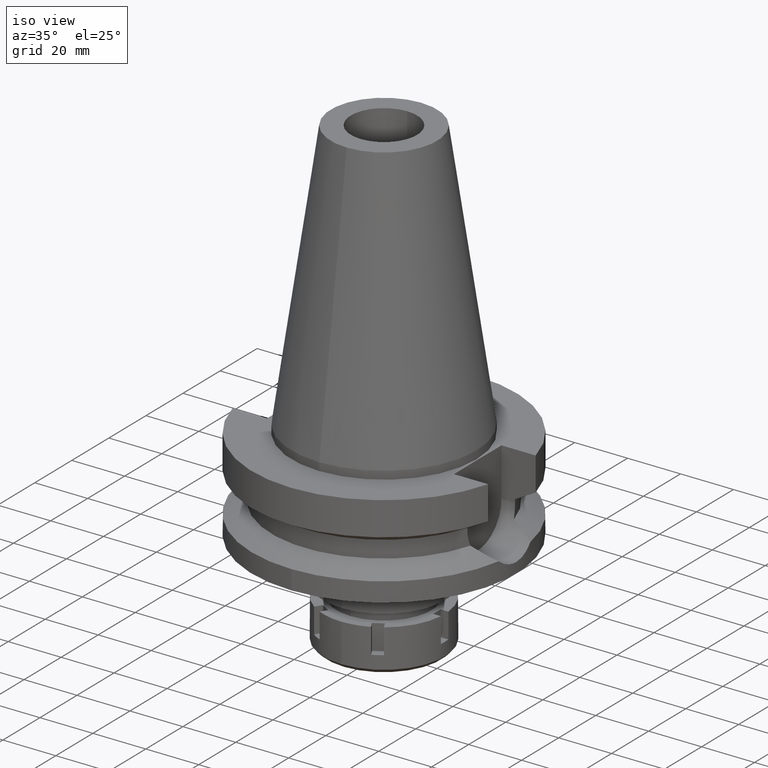
[diagram: clean part render]
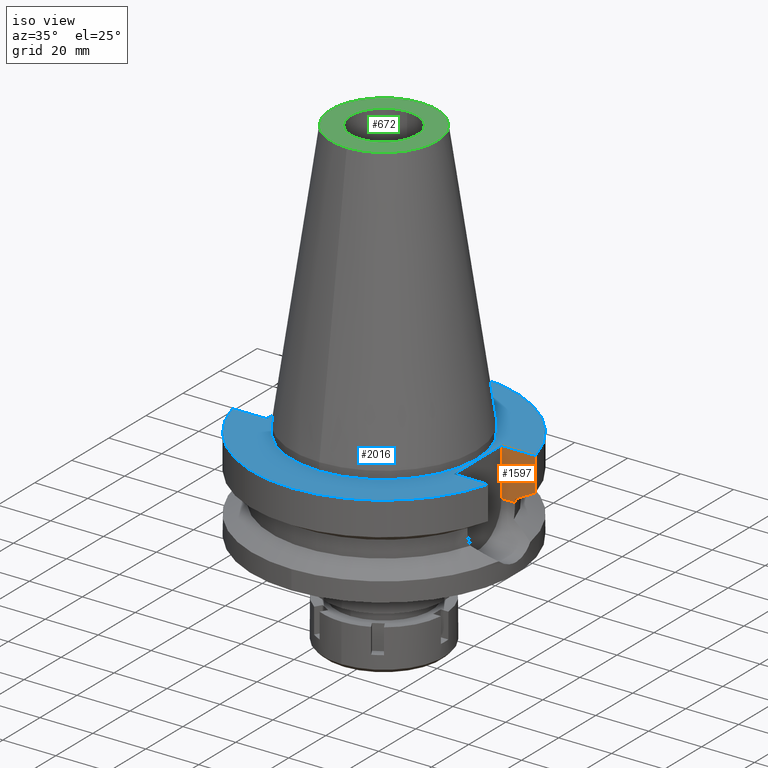
[diagram: same view with three faces highlighted in distinct colors, each labeled with its STEP entity id]
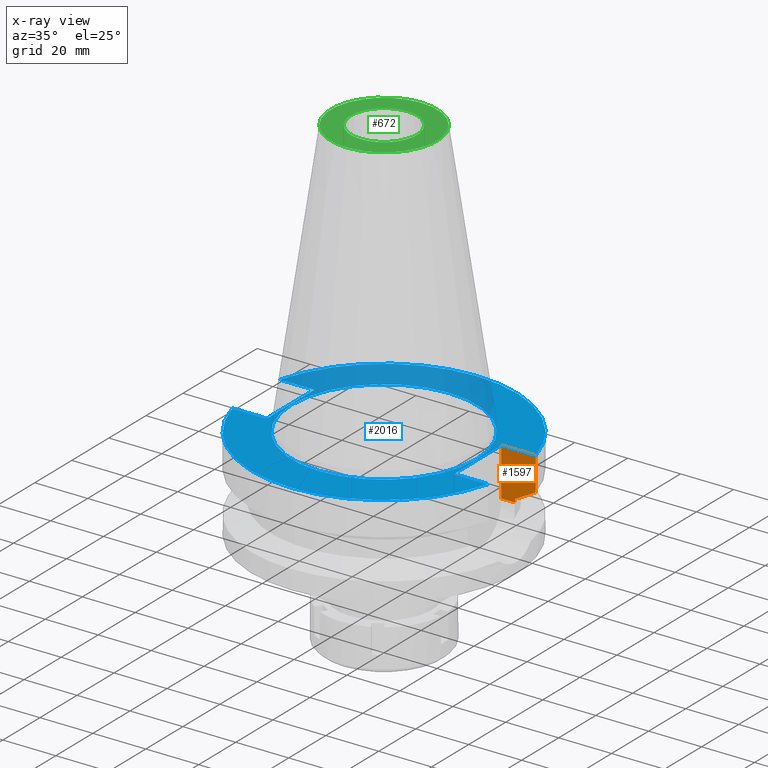
[diagram: x-ray of the same camera — body ghosted, the three highlighted faces saturated]
A machine part, iso view with three faces highlighted in distinct colors.
The next image is the same camera in x-ray (body ghosted, the three faces saturated) — at least one of them is partly hidden behind the body in this view.
Their STEP definitions:

[orange] entity #1597 — the highlighted planar face has unit normal (0, 1, 0).
#66 = CARTESIAN_POINT ( 'NONE',  ( 48.32056914196000008, 12.85000380531000097, -15.66265814809000112 ) ) ;
#156 = VERTEX_POINT ( 'NONE', #66 ) ;
#157 = VECTOR ( 'NONE', #794, 999.9999999999998863 ) ;
#159 = DIRECTION ( 'NONE',  ( 7.991657572512606666E-08, -3.005145553800853771E-07, 0.9999999999999515943 ) ) ;
#224 = VECTOR ( 'NONE', #3325, 1000.000000000000000 ) ;
#243 = LINE ( 'NONE', #1982, #157 ) ;
#398 = LINE ( 'NONE', #950, #3322 ) ;
#432 = EDGE_CURVE ( 'NONE', #1104, #2497, #398, .T. ) ;
#465 = CARTESIAN_POINT ( 'NONE',  ( 35.39999999999999858, 12.84999999999999964, -3.000000000000000000 ) ) ;
#471 = CARTESIAN_POINT ( 'NONE',  ( 40.51083188481999997, 12.84999999999999964, -21.14999999999999858 ) ) ;
#597 = CARTESIAN_POINT ( 'NONE',  ( 35.39999999999999858, 12.84999999999999964, -21.14999999999999858 ) ) ;
#604 = DIRECTION ( 'NONE',  ( 1.000000000000000000, 0.0000000000000000000, 0.0000000000000000000 ) ) ;
#771 = CARTESIAN_POINT ( 'NONE',  ( 48.32056914196000008, 12.85000380531000097, -15.66265814809000112 ) ) ;
#794 = DIRECTION ( 'NONE',  ( 9.779743485570689108E-07, -3.083158599628904422E-06, 0.9999999999947689622 ) ) ;
#888 = FACE_OUTER_BOUND ( 'NONE', #2721, .T. ) ;
#907 = ORIENTED_EDGE ( 'NONE', *, *, #432, .F. ) ;
#950 = CARTESIAN_POINT ( 'NONE',  ( 35.39999999999999858, 12.84999999999999964, -3.000000000000000000 ) ) ;
#1104 = VERTEX_POINT ( 'NONE', #465 ) ;
#1253 = EDGE_CURVE ( 'NONE', #1453, #2362, #3603, .T. ) ;
#1453 = VERTEX_POINT ( 'NONE', #597 ) ;
#1508 = VECTOR ( 'NONE', #3298, 1000.000000000000000 ) ;
#1555 = ORIENTED_EDGE ( 'NONE', *, *, #1253, .T. ) ;
#1584 = CARTESIAN_POINT ( 'NONE',  ( 40.51083301648999679, 12.84999643230999844, -19.99284663420000285 ) ) ;
#1597 = ADVANCED_FACE ( 'NONE', ( #888 ), #3135, .F. ) ;
#1817 = CARTESIAN_POINT ( 'NONE',  ( 45.51179745077989480, 12.85000760603089631, -17.22986794761408902 ) ) ;
#1859 = LINE ( 'NONE', #3026, #1508 ) ;
#1906 = CARTESIAN_POINT ( 'NONE',  ( 35.39999999999999858, 12.84999999999999964, -21.14999999999999858 ) ) ;
#1982 = CARTESIAN_POINT ( 'NONE',  ( 40.51083188481999997, 12.84999999999999964, -21.14999999999999858 ) ) ;
#2080 = ORIENTED_EDGE ( 'NONE', *, *, #2677, .T. ) ;
#2088 = AXIS2_PLACEMENT_3D ( 'NONE', #3174, #2822, #2542 ) ;
#2228 = B_SPLINE_CURVE_WITH_KNOTS ( 'NONE', 3,
 ( #3005, #1817, #2452, #1584 ),
 .UNSPECIFIED., .F., .F.,
 ( 4, 4 ),
 ( 0.0000000000000000000, 1.000000000000000000 ),
 .UNSPECIFIED. ) ;
#2362 = VERTEX_POINT ( 'NONE', #471 ) ;
#2452 = CARTESIAN_POINT ( 'NONE',  ( 42.90862327296481737, 12.84999285736233965, -18.67324874285292324 ) ) ;
#2497 = VERTEX_POINT ( 'NONE', #3362 ) ;
#2542 = DIRECTION ( 'NONE',  ( 1.000000000000000000, 0.0000000000000000000, 0.0000000000000000000 ) ) ;
#2677 = EDGE_CURVE ( 'NONE', #2362, #3455, #243, .T. ) ;
#2721 = EDGE_LOOP ( 'NONE', ( #3424, #3389, #907, #2731, #1555, #2080 ) ) ;
#2731 = ORIENTED_EDGE ( 'NONE', *, *, #2902, .T. ) ;
#2743 = CARTESIAN_POINT ( 'NONE',  ( 40.51083301648999679, 12.84999643230999844, -19.99284663420000285 ) ) ;
#2792 = VECTOR ( 'NONE', #159, 1000.000000000000227 ) ;
#2822 = DIRECTION ( 'NONE',  ( -0.0000000000000000000, 1.000000000000000000, 0.0000000000000000000 ) ) ;
#2830 = EDGE_CURVE ( 'NONE', #156, #2497, #3231, .T. ) ;
#2854 = EDGE_CURVE ( 'NONE', #156, #3455, #2228, .T. ) ;
#2902 = EDGE_CURVE ( 'NONE', #1104, #1453, #1859, .T. ) ;
#3005 = CARTESIAN_POINT ( 'NONE',  ( 48.32056914196000008, 12.85000380531000097, -15.66265814809000112 ) ) ;
#3026 = CARTESIAN_POINT ( 'NONE',  ( 35.39999999999999858, 12.84999999999999964, -3.000000000000000000 ) ) ;
#3135 = PLANE ( 'NONE',  #2088 ) ;
#3174 = CARTESIAN_POINT ( 'NONE',  ( 35.39999999999999858, 12.84999999999999964, -21.14999999999999858 ) ) ;
#3231 = LINE ( 'NONE', #771, #2792 ) ;
#3298 = DIRECTION ( 'NONE',  ( 0.0000000000000000000, 0.0000000000000000000, -1.000000000000000000 ) ) ;
#3322 = VECTOR ( 'NONE', #604, 1000.000000000000000 ) ;
#3325 = DIRECTION ( 'NONE',  ( 1.000000000000000000, -3.371400533318999474E-14, 0.0000000000000000000 ) ) ;
#3362 = CARTESIAN_POINT ( 'NONE',  ( 48.32057015392000210, 12.84999999999999964, -3.000000000000000000 ) ) ;
#3389 = ORIENTED_EDGE ( 'NONE', *, *, #2830, .T. ) ;
#3424 = ORIENTED_EDGE ( 'NONE', *, *, #2854, .F. ) ;
#3455 = VERTEX_POINT ( 'NONE', #2743 ) ;
#3603 = LINE ( 'NONE', #1906, #224 ) ;

[blue] entity #2016 — the highlighted planar face has unit normal (0, 0, -1).
#6 = DIRECTION ( 'NONE',  ( -1.000000000000000000, 0.0000000000000000000, 0.0000000000000000000 ) ) ;
#8 = DIRECTION ( 'NONE',  ( 0.0000000000000000000, 0.0000000000000000000, -1.000000000000000000 ) ) ;
#34 = ORIENTED_EDGE ( 'NONE', *, *, #438, .F. ) ;
#118 = CARTESIAN_POINT ( 'NONE',  ( 35.39999999999999858, 12.84999999999999964, -3.000000000000000000 ) ) ;
#181 = ORIENTED_EDGE ( 'NONE', *, *, #432, .T. ) ;
#244 = CARTESIAN_POINT ( 'NONE',  ( -48.32057015392000210, -12.84999999999999964, -3.000000000000000000 ) ) ;
#261 = DIRECTION ( 'NONE',  ( 0.0000000000000000000, 0.0000000000000000000, 1.000000000000000000 ) ) ;
#289 = ORIENTED_EDGE ( 'NONE', *, *, #1620, .F. ) ;
#291 = CARTESIAN_POINT ( 'NONE',  ( -35.39999999999999858, -12.84999999999999964, -3.000000000000000000 ) ) ;
#296 = DIRECTION ( 'NONE',  ( 0.0000000000000000000, 1.000000000000000000, 0.0000000000000000000 ) ) ;
#341 = VECTOR ( 'NONE', #6, 1000.000000000000000 ) ;
#377 = CARTESIAN_POINT ( 'NONE',  ( -35.39999999999999858, 12.84999999999999964, -3.000000000000000000 ) ) ;
#383 = LINE ( 'NONE', #3187, #1091 ) ;
#398 = LINE ( 'NONE', #950, #3322 ) ;
#417 = VERTEX_POINT ( 'NONE', #377 ) ;
#432 = EDGE_CURVE ( 'NONE', #1104, #2497, #398, .T. ) ;
#436 = LINE ( 'NONE', #118, #723 ) ;
#438 = EDGE_CURVE ( 'NONE', #1280, #2508, #3601, .T. ) ;
#465 = CARTESIAN_POINT ( 'NONE',  ( 35.39999999999999858, 12.84999999999999964, -3.000000000000000000 ) ) ;
#528 = CARTESIAN_POINT ( 'NONE',  ( -35.39999999999999858, -12.84999999999999964, -3.000000000000000000 ) ) ;
#552 = DIRECTION ( 'NONE',  ( 0.0000000000000000000, -1.000000000000000000, 0.0000000000000000000 ) ) ;
#560 = CARTESIAN_POINT ( 'NONE',  ( 0.0000000000000000000, 34.92499999999999716, -3.000000000000000000 ) ) ;
#604 = DIRECTION ( 'NONE',  ( 1.000000000000000000, 0.0000000000000000000, 0.0000000000000000000 ) ) ;
#633 = DIRECTION ( 'NONE',  ( 0.0000000000000000000, 1.000000000000000000, 0.0000000000000000000 ) ) ;
#640 = ORIENTED_EDGE ( 'NONE', *, *, #3437, .F. ) ;
#723 = VECTOR ( 'NONE', #3475, 1000.000000000000000 ) ;
#778 = CARTESIAN_POINT ( 'NONE',  ( 0.0000000000000000000, 2.574697430526999748E-14, -3.000000000000000000 ) ) ;
#889 = VERTEX_POINT ( 'NONE', #2584 ) ;
#906 = LINE ( 'NONE', #2862, #3213 ) ;
#950 = CARTESIAN_POINT ( 'NONE',  ( 35.39999999999999858, 12.84999999999999964, -3.000000000000000000 ) ) ;
#952 = ORIENTED_EDGE ( 'NONE', *, *, #2812, .F. ) ;
#987 = ORIENTED_EDGE ( 'NONE', *, *, #1233, .F. ) ;
#1091 = VECTOR ( 'NONE', #1218, 1000.000000000000000 ) ;
#1104 = VERTEX_POINT ( 'NONE', #465 ) ;
#1175 = FACE_OUTER_BOUND ( 'NONE', #1870, .T. ) ;
#1194 = PLANE ( 'NONE',  #1921 ) ;
#1218 = DIRECTION ( 'NONE',  ( -1.000000000000000000, 0.0000000000000000000, 0.0000000000000000000 ) ) ;
#1233 = EDGE_CURVE ( 'NONE', #2122, #1934, #2857, .T. ) ;
#1244 = VERTEX_POINT ( 'NONE', #2473 ) ;
#1280 = VERTEX_POINT ( 'NONE', #2177 ) ;
#1298 = EDGE_LOOP ( 'NONE', ( #3068, #34 ) ) ;
#1304 = DIRECTION ( 'NONE',  ( 0.0000000000000000000, 0.0000000000000000000, -1.000000000000000000 ) ) ;
#1405 = CARTESIAN_POINT ( 'NONE',  ( 0.0000000000000000000, 1.187907395172999884E-14, -3.000000000000000000 ) ) ;
#1443 = EDGE_CURVE ( 'NONE', #2508, #1280, #2320, .T. ) ;
#1483 = VECTOR ( 'NONE', #2204, 1000.000000000000000 ) ;
#1510 = DIRECTION ( 'NONE',  ( 0.0000000000000000000, 0.0000000000000000000, 1.000000000000000000 ) ) ;
#1620 = EDGE_CURVE ( 'NONE', #2471, #417, #906, .T. ) ;
#1626 = DIRECTION ( 'NONE',  ( 0.0000000000000000000, 1.000000000000000000, 0.0000000000000000000 ) ) ;
#1638 = ORIENTED_EDGE ( 'NONE', *, *, #3062, .T. ) ;
#1668 = LINE ( 'NONE', #3595, #1483 ) ;
#1681 = CARTESIAN_POINT ( 'NONE',  ( 0.0000000000000000000, 2.574697430526999748E-14, -3.000000000000000000 ) ) ;
#1723 = CARTESIAN_POINT ( 'NONE',  ( 0.0000000000000000000, 2.574697430526999748E-14, -3.000000000000000000 ) ) ;
#1870 = EDGE_LOOP ( 'NONE', ( #1638, #987, #640, #2995, #181, #952, #1963, #289 ) ) ;
#1916 = AXIS2_PLACEMENT_3D ( 'NONE', #2114, #1304, #1626 ) ;
#1921 = AXIS2_PLACEMENT_3D ( 'NONE', #1405, #8, #2245 ) ;
#1934 = VERTEX_POINT ( 'NONE', #244 ) ;
#1963 = ORIENTED_EDGE ( 'NONE', *, *, #2158, .F. ) ;
#2016 = ADVANCED_FACE ( 'NONE', ( #1175, #2044 ), #1194, .F. ) ;
#2044 = FACE_BOUND ( 'NONE', #1298, .T. ) ;
#2114 = CARTESIAN_POINT ( 'NONE',  ( 0.0000000000000000000, 2.574697430526999748E-14, -3.000000000000000000 ) ) ;
#2122 = VERTEX_POINT ( 'NONE', #2523 ) ;
#2158 = EDGE_CURVE ( 'NONE', #417, #889, #383, .T. ) ;
#2177 = CARTESIAN_POINT ( 'NONE',  ( 0.0000000000000000000, -34.92499999999999716, -3.000000000000000000 ) ) ;
#2202 = EDGE_CURVE ( 'NONE', #1104, #1244, #436, .T. ) ;
#2204 = DIRECTION ( 'NONE',  ( 1.000000000000000000, 0.0000000000000000000, 0.0000000000000000000 ) ) ;
#2245 = DIRECTION ( 'NONE',  ( 0.0000000000000000000, -1.000000000000000000, 0.0000000000000000000 ) ) ;
#2255 = AXIS2_PLACEMENT_3D ( 'NONE', #1723, #1510, #3435 ) ;
#2320 = CIRCLE ( 'NONE', #2680, 34.92499999999999716 ) ;
#2471 = VERTEX_POINT ( 'NONE', #528 ) ;
#2473 = CARTESIAN_POINT ( 'NONE',  ( 35.39999999999999858, -12.84999999999999964, -3.000000000000000000 ) ) ;
#2497 = VERTEX_POINT ( 'NONE', #3362 ) ;
#2508 = VERTEX_POINT ( 'NONE', #560 ) ;
#2523 = CARTESIAN_POINT ( 'NONE',  ( 48.32057015392000210, -12.84999999999999964, -3.000000000000000000 ) ) ;
#2556 = AXIS2_PLACEMENT_3D ( 'NONE', #778, #3341, #552 ) ;
#2584 = CARTESIAN_POINT ( 'NONE',  ( -48.32057015392000210, 12.84999999999999964, -3.000000000000000000 ) ) ;
#2680 = AXIS2_PLACEMENT_3D ( 'NONE', #1681, #261, #296 ) ;
#2812 = EDGE_CURVE ( 'NONE', #889, #2497, #3492, .T. ) ;
#2857 = CIRCLE ( 'NONE', #2556, 50.00000000000000000 ) ;
#2862 = CARTESIAN_POINT ( 'NONE',  ( -35.39999999999999858, -12.84999999999999964, -3.000000000000000000 ) ) ;
#2995 = ORIENTED_EDGE ( 'NONE', *, *, #2202, .F. ) ;
#3062 = EDGE_CURVE ( 'NONE', #2471, #1934, #3063, .T. ) ;
#3063 = LINE ( 'NONE', #291, #341 ) ;
#3068 = ORIENTED_EDGE ( 'NONE', *, *, #1443, .F. ) ;
#3187 = CARTESIAN_POINT ( 'NONE',  ( -35.39999999999999858, 12.84999999999999964, -3.000000000000000000 ) ) ;
#3213 = VECTOR ( 'NONE', #633, 1000.000000000000000 ) ;
#3322 = VECTOR ( 'NONE', #604, 1000.000000000000000 ) ;
#3341 = DIRECTION ( 'NONE',  ( 0.0000000000000000000, 0.0000000000000000000, -1.000000000000000000 ) ) ;
#3362 = CARTESIAN_POINT ( 'NONE',  ( 48.32057015392000210, 12.84999999999999964, -3.000000000000000000 ) ) ;
#3435 = DIRECTION ( 'NONE',  ( 0.0000000000000000000, -1.000000000000000000, 0.0000000000000000000 ) ) ;
#3437 = EDGE_CURVE ( 'NONE', #1244, #2122, #1668, .T. ) ;
#3475 = DIRECTION ( 'NONE',  ( 0.0000000000000000000, -1.000000000000000000, 0.0000000000000000000 ) ) ;
#3492 = CIRCLE ( 'NONE', #1916, 50.00000000000000000 ) ;
#3595 = CARTESIAN_POINT ( 'NONE',  ( 35.39999999999999858, -12.84999999999999964, -3.000000000000000000 ) ) ;
#3601 = CIRCLE ( 'NONE', #2255, 34.92499999999999716 ) ;

[green] entity #672 — the highlighted planar face has unit normal (0, 0, -1).
#183 = DIRECTION ( 'NONE',  ( 0.0000000000000000000, 0.0000000000000000000, 1.000000000000000000 ) ) ;
#194 = DIRECTION ( 'NONE',  ( 0.0000000000000000000, 0.0000000000000000000, -1.000000000000000000 ) ) ;
#216 = ORIENTED_EDGE ( 'NONE', *, *, #2384, .F. ) ;
#257 = DIRECTION ( 'NONE',  ( 0.0000000000000000000, -1.000000000000000000, 0.0000000000000000000 ) ) ;
#469 = CARTESIAN_POINT ( 'NONE',  ( 0.0000000000000000000, 1.847992019912999597E-14, 101.7999999999999972 ) ) ;
#542 = DIRECTION ( 'NONE',  ( 0.0000000000000000000, -1.000000000000000000, 0.0000000000000000000 ) ) ;
#672 = ADVANCED_FACE ( 'NONE', ( #1317, #696 ), #1279, .F. ) ;
#696 = FACE_BOUND ( 'NONE', #2608, .T. ) ;
#959 = CARTESIAN_POINT ( 'NONE',  ( 0.0000000000000000000, 20.07942971896000017, 101.7999999999999972 ) ) ;
#973 = DIRECTION ( 'NONE',  ( 0.0000000000000000000, 0.0000000000000000000, -1.000000000000000000 ) ) ;
#1065 = CARTESIAN_POINT ( 'NONE',  ( 0.0000000000000000000, 2.574697430526999748E-14, 101.7999999999999972 ) ) ;
#1184 = EDGE_CURVE ( 'NONE', #2533, #2563, #2973, .T. ) ;
#1276 = CARTESIAN_POINT ( 'NONE',  ( 0.0000000000000000000, 2.574697430526999748E-14, 101.7999999999999972 ) ) ;
#1279 = PLANE ( 'NONE',  #3086 ) ;
#1317 = FACE_OUTER_BOUND ( 'NONE', #3194, .T. ) ;
#1333 = DIRECTION ( 'NONE',  ( 0.0000000000000000000, 0.0000000000000000000, 1.000000000000000000 ) ) ;
#1402 = CARTESIAN_POINT ( 'NONE',  ( 0.0000000000000000000, 12.50000000000000000, 101.7999999999999972 ) ) ;
#1472 = ORIENTED_EDGE ( 'NONE', *, *, #1184, .F. ) ;
#1627 = CIRCLE ( 'NONE', #2209, 12.50000000000000000 ) ;
#1694 = VERTEX_POINT ( 'NONE', #959 ) ;
#1810 = EDGE_CURVE ( 'NONE', #2563, #2533, #1627, .T. ) ;
#1824 = DIRECTION ( 'NONE',  ( 0.0000000000000000000, 1.000000000000000000, 0.0000000000000000000 ) ) ;
#2209 = AXIS2_PLACEMENT_3D ( 'NONE', #1065, #1333, #257 ) ;
#2315 = AXIS2_PLACEMENT_3D ( 'NONE', #1276, #183, #1824 ) ;
#2384 = EDGE_CURVE ( 'NONE', #2909, #1694, #3199, .T. ) ;
#2402 = DIRECTION ( 'NONE',  ( 0.0000000000000000000, 0.0000000000000000000, -1.000000000000000000 ) ) ;
#2442 = DIRECTION ( 'NONE',  ( 0.0000000000000000000, -1.000000000000000000, 0.0000000000000000000 ) ) ;
#2533 = VERTEX_POINT ( 'NONE', #1402 ) ;
#2552 = CARTESIAN_POINT ( 'NONE',  ( 0.0000000000000000000, -12.50000000000000000, 101.7999999999999972 ) ) ;
#2563 = VERTEX_POINT ( 'NONE', #2552 ) ;
#2608 = EDGE_LOOP ( 'NONE', ( #1472, #2964 ) ) ;
#2667 = DIRECTION ( 'NONE',  ( 0.0000000000000000000, 1.000000000000000000, 0.0000000000000000000 ) ) ;
#2771 = CIRCLE ( 'NONE', #2893, 20.07942971896000017 ) ;
#2893 = AXIS2_PLACEMENT_3D ( 'NONE', #469, #973, #2667 ) ;
#2909 = VERTEX_POINT ( 'NONE', #3513 ) ;
#2938 = CARTESIAN_POINT ( 'NONE',  ( 0.0000000000000000000, 2.471337240678999545E-14, 101.7999999999999972 ) ) ;
#2964 = ORIENTED_EDGE ( 'NONE', *, *, #1810, .F. ) ;
#2973 = CIRCLE ( 'NONE', #2315, 12.50000000000000000 ) ;
#2999 = ORIENTED_EDGE ( 'NONE', *, *, #3331, .F. ) ;
#3086 = AXIS2_PLACEMENT_3D ( 'NONE', #2938, #2402, #2442 ) ;
#3194 = EDGE_LOOP ( 'NONE', ( #2999, #216 ) ) ;
#3199 = CIRCLE ( 'NONE', #3427, 20.07942971896000017 ) ;
#3331 = EDGE_CURVE ( 'NONE', #1694, #2909, #2771, .T. ) ;
#3427 = AXIS2_PLACEMENT_3D ( 'NONE', #3564, #194, #542 ) ;
#3513 = CARTESIAN_POINT ( 'NONE',  ( 0.0000000000000000000, -20.07942971896000017, 101.7999999999999972 ) ) ;
#3564 = CARTESIAN_POINT ( 'NONE',  ( 0.0000000000000000000, 1.847992019912999597E-14, 101.7999999999999972 ) ) ;